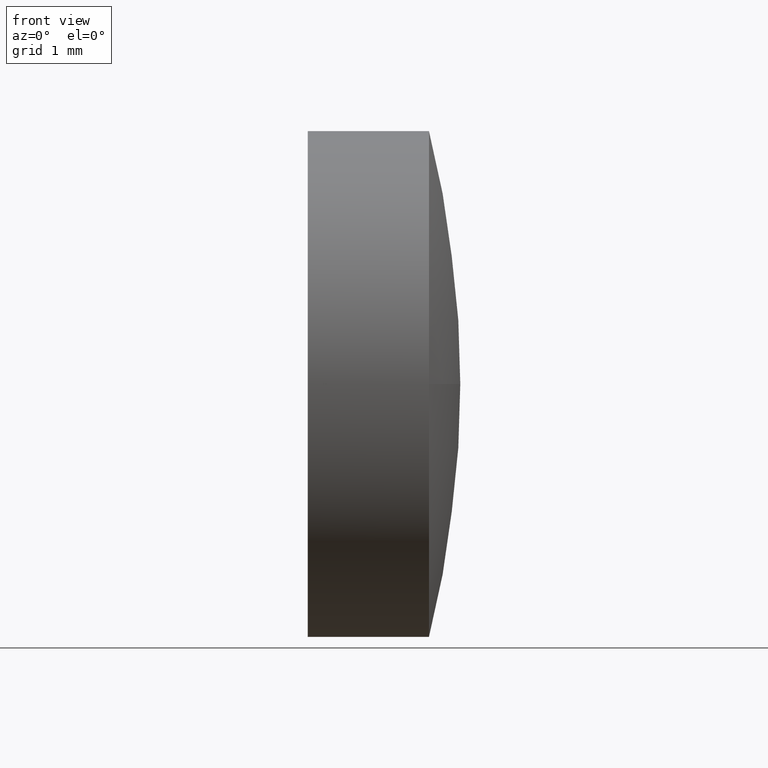
[diagram: clean part render]
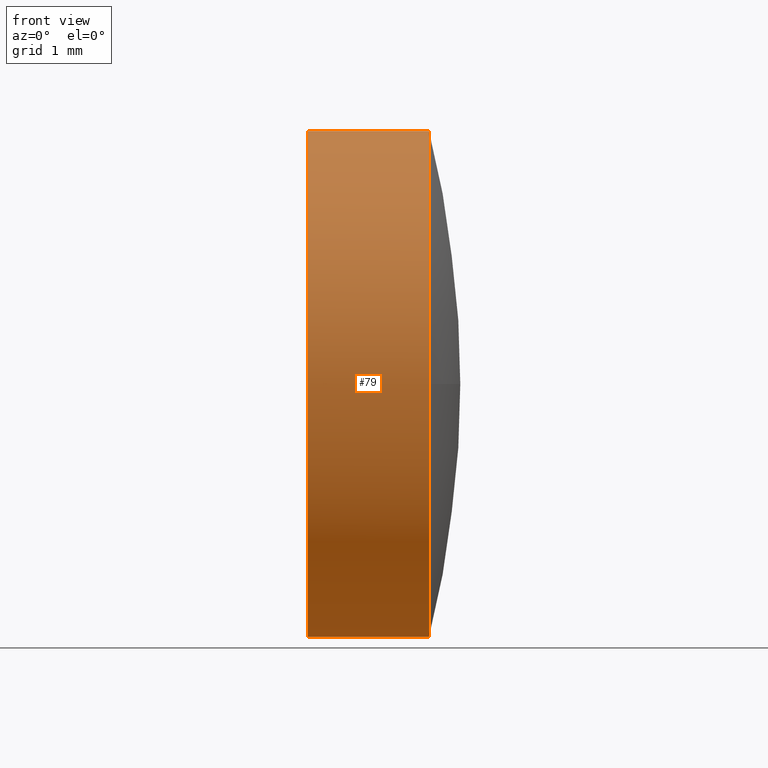
[diagram: same view with one face highlighted and labeled with its STEP entity id]
A machine part, front view. The second image highlights one B-rep face of the part: STEP entity #79.
In plain terms, the highlighted cylindrical surface (partial cylindrical patch) has radius 3.15 mm, axis along (-1, -0, -0).
Its self-contained STEP definition (entity closure, byte-faithful):
#2 = FACE_OUTER_BOUND ( 'NONE', #132, .T. ) ;
#4 = VERTEX_POINT ( 'NONE', #153 ) ;
#13 = VERTEX_POINT ( 'NONE', #69 ) ;
#18 = CARTESIAN_POINT ( 'NONE',  ( 447.0229086079864400, 67.58735190658296700, 3.150000000000013700 ) ) ;
#24 = EDGE_CURVE ( 'NONE', #55, #95, #83, .T. ) ;
#28 = DIRECTION ( 'NONE',  ( 0.0000000000000000000, 0.0000000000000000000, 1.000000000000000000 ) ) ;
#32 = LINE ( 'NONE', #18, #111 ) ;
#35 = EDGE_CURVE ( 'NONE', #4, #13, #77, .T. ) ;
#39 = ORIENTED_EDGE ( 'NONE', *, *, #24, .F. ) ;
#43 = DIRECTION ( 'NONE',  ( -1.000000000000000000, -0.0000000000000000000, -0.0000000000000000000 ) ) ;
#48 = CARTESIAN_POINT ( 'NONE',  ( 447.8845367775709300, 67.58735190658296700, 0.0000000000000000000 ) ) ;
#53 = AXIS2_PLACEMENT_3D ( 'NONE', #160, #71, #86 ) ;
#55 = VERTEX_POINT ( 'NONE', #143 ) ;
#61 = ORIENTED_EDGE ( 'NONE', *, *, #35, .T. ) ;
#69 = CARTESIAN_POINT ( 'NONE',  ( 449.3945367775709200, 67.58735190658296700, 3.150000000000013700 ) ) ;
#71 = DIRECTION ( 'NONE',  ( -1.000000000000000000, -0.0000000000000000000, -0.0000000000000000000 ) ) ;
#73 = DIRECTION ( 'NONE',  ( -1.000000000000000000, -0.0000000000000000000, -0.0000000000000000000 ) ) ;
#77 = CIRCLE ( 'NONE', #103, 3.150000000000013700 ) ;
#79 = ADVANCED_FACE ( 'NONE', ( #2 ), #155, .T. ) ;
#83 = LINE ( 'NONE', #120, #105 ) ;
#84 = ORIENTED_EDGE ( 'NONE', *, *, #98, .F. ) ;
#86 = DIRECTION ( 'NONE',  ( 0.0000000000000000000, 0.0000000000000000000, 1.000000000000000000 ) ) ;
#95 = VERTEX_POINT ( 'NONE', #172 ) ;
#98 = EDGE_CURVE ( 'NONE', #95, #130, #183, .T. ) ;
#103 = AXIS2_PLACEMENT_3D ( 'NONE', #186, #159, #156 ) ;
#105 = VECTOR ( 'NONE', #142, 1000.000000000000000 ) ;
#109 = EDGE_CURVE ( 'NONE', #55, #4, #144, .T. ) ;
#111 = VECTOR ( 'NONE', #43, 1000.000000000000000 ) ;
#114 = AXIS2_PLACEMENT_3D ( 'NONE', #48, #73, #28 ) ;
#117 = EDGE_CURVE ( 'NONE', #13, #130, #32, .T. ) ;
#120 = CARTESIAN_POINT ( 'NONE',  ( 447.0229086079864400, 67.58735190658296700, -3.150000000000013700 ) ) ;
#121 = DIRECTION ( 'NONE',  ( 0.0000000000000000000, 0.0000000000000000000, 1.000000000000000000 ) ) ;
#130 = VERTEX_POINT ( 'NONE', #137 ) ;
#132 = EDGE_LOOP ( 'NONE', ( #39, #184, #61, #158, #84 ) ) ;
#137 = CARTESIAN_POINT ( 'NONE',  ( 447.8845367775709300, 67.58735190658296700, 3.150000000000013700 ) ) ;
#141 = AXIS2_PLACEMENT_3D ( 'NONE', #161, #164, #121 ) ;
#142 = DIRECTION ( 'NONE',  ( -1.000000000000000000, -0.0000000000000000000, -0.0000000000000000000 ) ) ;
#143 = CARTESIAN_POINT ( 'NONE',  ( 449.3945367775709200, 67.58735190658296700, -3.150000000000013700 ) ) ;
#144 = CIRCLE ( 'NONE', #141, 3.150000000000013700 ) ;
#153 = CARTESIAN_POINT ( 'NONE',  ( 449.3945367775709200, 64.43735190658293300, -3.857637417314168100E-016 ) ) ;
#155 = CYLINDRICAL_SURFACE ( 'NONE', #53, 3.150000000000013700 ) ;
#156 = DIRECTION ( 'NONE',  ( 0.0000000000000000000, 0.0000000000000000000, 1.000000000000000000 ) ) ;
#158 = ORIENTED_EDGE ( 'NONE', *, *, #117, .T. ) ;
#159 = DIRECTION ( 'NONE',  ( -1.000000000000000000, -0.0000000000000000000, -0.0000000000000000000 ) ) ;
#160 = CARTESIAN_POINT ( 'NONE',  ( 447.0229086079864400, 67.58735190658296700, 0.0000000000000000000 ) ) ;
#161 = CARTESIAN_POINT ( 'NONE',  ( 449.3945367775709200, 67.58735190658296700, 0.0000000000000000000 ) ) ;
#164 = DIRECTION ( 'NONE',  ( -1.000000000000000000, -0.0000000000000000000, -0.0000000000000000000 ) ) ;
#172 = CARTESIAN_POINT ( 'NONE',  ( 447.8845367775709300, 67.58735190658296700, -3.150000000000013700 ) ) ;
#183 = CIRCLE ( 'NONE', #114, 3.150000000000013700 ) ;
#184 = ORIENTED_EDGE ( 'NONE', *, *, #109, .T. ) ;
#186 = CARTESIAN_POINT ( 'NONE',  ( 449.3945367775709200, 67.58735190658296700, 0.0000000000000000000 ) ) ;